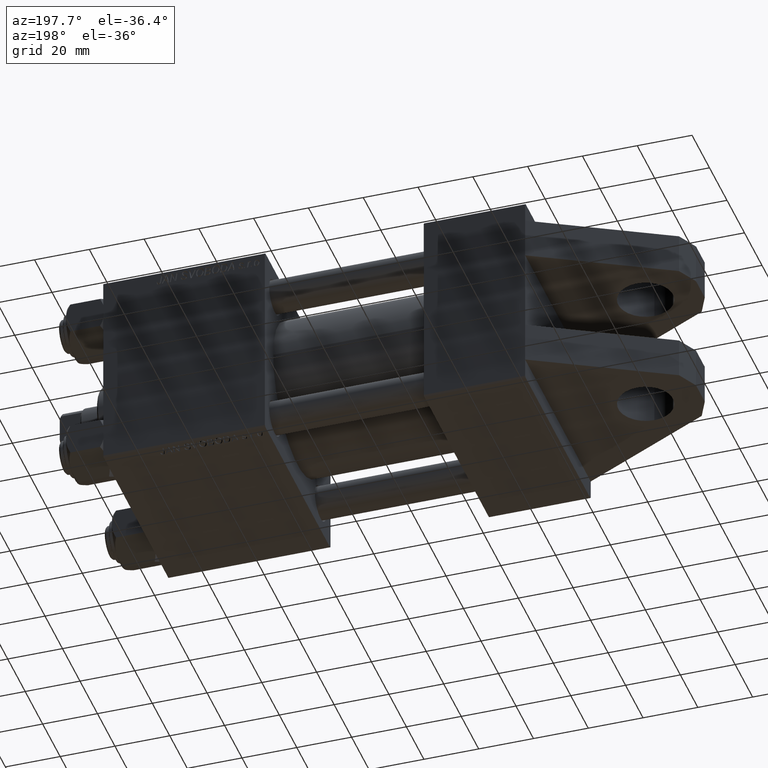
[diagram: clean part render]
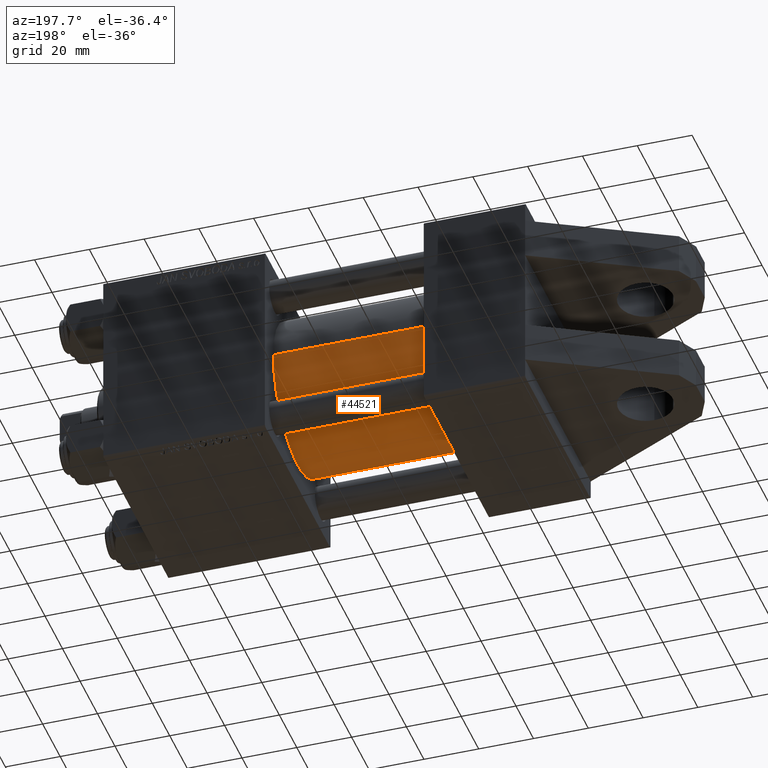
[diagram: same view with one face highlighted and labeled with its STEP entity id]
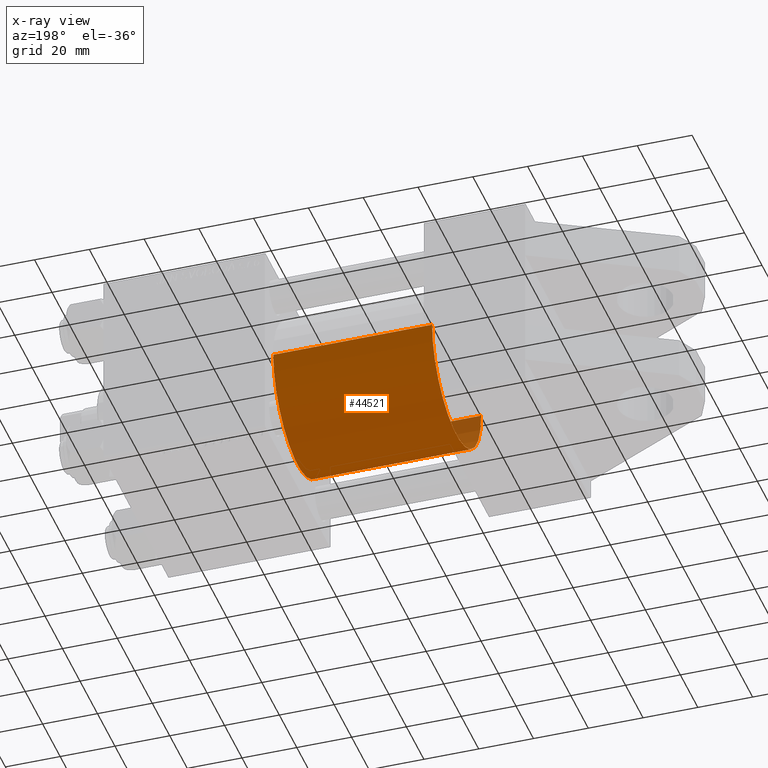
[diagram: x-ray of the same camera — body ghosted, the highlighted face saturated]
A machine part, auxiliary view. The second image highlights one B-rep face of the part: STEP entity #44521.
The next image is the same camera in x-ray: the body ghosted, the highlighted face saturated — about 3% of this face is hidden behind the body in this view.
In plain terms, the highlighted cylindrical surface (partial cylindrical patch) has radius 28 mm, axis along (-1, -0, 0).
Its self-contained STEP definition (entity closure, byte-faithful):
#1834 = CARTESIAN_POINT ( 'NONE',  ( 37.00000000000000000, -4.043591434102586818E-17, -28.00000000000000000 ) ) ;
#2384 = ORIENTED_EDGE ( 'NONE', *, *, #13092, .T. ) ;
#4481 = VECTOR ( 'NONE', #20396, 1000.000000000000000 ) ;
#5930 = DIRECTION ( 'NONE',  ( -1.000000000000000000, -0.000000000000000000, -0.000000000000000000 ) ) ;
#7909 = VERTEX_POINT ( 'NONE', #41065 ) ;
#9436 = CARTESIAN_POINT ( 'NONE',  ( 37.00000000000000000, -3.469446951953614189E-15, 0.000000000000000000 ) ) ;
#10192 = AXIS2_PLACEMENT_3D ( 'NONE', #15379, #37998, #11357 ) ;
#11357 = DIRECTION ( 'NONE',  ( 0.000000000000000000, 0.000000000000000000, 1.000000000000000000 ) ) ;
#13092 = EDGE_CURVE ( 'NONE', #21977, #31917, #41634, .T. ) ;
#13111 = CARTESIAN_POINT ( 'NONE',  ( 95.00000000000000000, -3.469446951953614189E-15, 28.00000000000000000 ) ) ;
#13270 = ORIENTED_EDGE ( 'NONE', *, *, #38585, .F. ) ;
#13726 = LINE ( 'NONE', #24779, #16812 ) ;
#15129 = FACE_OUTER_BOUND ( 'NONE', #39837, .T. ) ;
#15379 = CARTESIAN_POINT ( 'NONE',  ( 95.00000000000000000, -3.469446951953614189E-15, 0.000000000000000000 ) ) ;
#16595 = EDGE_CURVE ( 'NONE', #17606, #7909, #27152, .T. ) ;
#16812 = VECTOR ( 'NONE', #5930, 1000.000000000000000 ) ;
#17606 = VERTEX_POINT ( 'NONE', #44856 ) ;
#18295 = EDGE_CURVE ( 'NONE', #17606, #21977, #13726, .T. ) ;
#20396 = DIRECTION ( 'NONE',  ( -1.000000000000000000, -0.000000000000000000, -0.000000000000000000 ) ) ;
#21977 = VERTEX_POINT ( 'NONE', #1834 ) ;
#23127 = CARTESIAN_POINT ( 'NONE',  ( 37.00000000000000000, -3.469446951953614189E-15, 28.00000000000000000 ) ) ;
#24760 = DIRECTION ( 'NONE',  ( 1.000000000000000000, -0.000000000000000000, 0.000000000000000000 ) ) ;
#24774 = AXIS2_PLACEMENT_3D ( 'NONE', #9436, #24760, #28275 ) ;
#24779 = CARTESIAN_POINT ( 'NONE',  ( 95.00000000000000000, -4.043591434102586818E-17, -28.00000000000000000 ) ) ;
#27152 = CIRCLE ( 'NONE', #48053, 28.00000000000000000 ) ;
#28275 = DIRECTION ( 'NONE',  ( 0.000000000000000000, 0.000000000000000000, 1.000000000000000000 ) ) ;
#31917 = VERTEX_POINT ( 'NONE', #23127 ) ;
#33736 = CYLINDRICAL_SURFACE ( 'NONE', #10192, 28.00000000000000000 ) ;
#36473 = LINE ( 'NONE', #13111, #4481 ) ;
#37908 = DIRECTION ( 'NONE',  ( 0.000000000000000000, 0.000000000000000000, -1.000000000000000000 ) ) ;
#37998 = DIRECTION ( 'NONE',  ( -1.000000000000000000, -0.000000000000000000, -0.000000000000000000 ) ) ;
#38585 = EDGE_CURVE ( 'NONE', #7909, #31917, #36473, .T. ) ;
#39837 = EDGE_LOOP ( 'NONE', ( #48948, #42291, #2384, #13270 ) ) ;
#41065 = CARTESIAN_POINT ( 'NONE',  ( 95.00000000000000000, -3.469446951953614189E-15, 28.00000000000000000 ) ) ;
#41446 = DIRECTION ( 'NONE',  ( 1.000000000000000000, 0.000000000000000000, 0.000000000000000000 ) ) ;
#41634 = CIRCLE ( 'NONE', #24774, 28.00000000000000000 ) ;
#41937 = CARTESIAN_POINT ( 'NONE',  ( 95.00000000000000000, -3.469446951953614189E-15, 0.000000000000000000 ) ) ;
#42291 = ORIENTED_EDGE ( 'NONE', *, *, #18295, .T. ) ;
#44521 = ADVANCED_FACE ( 'NONE', ( #15129 ), #33736, .T. ) ;
#44856 = CARTESIAN_POINT ( 'NONE',  ( 95.00000000000000000, -4.043591434102586818E-17, -28.00000000000000000 ) ) ;
#48053 = AXIS2_PLACEMENT_3D ( 'NONE', #41937, #41446, #37908 ) ;
#48948 = ORIENTED_EDGE ( 'NONE', *, *, #16595, .F. ) ;